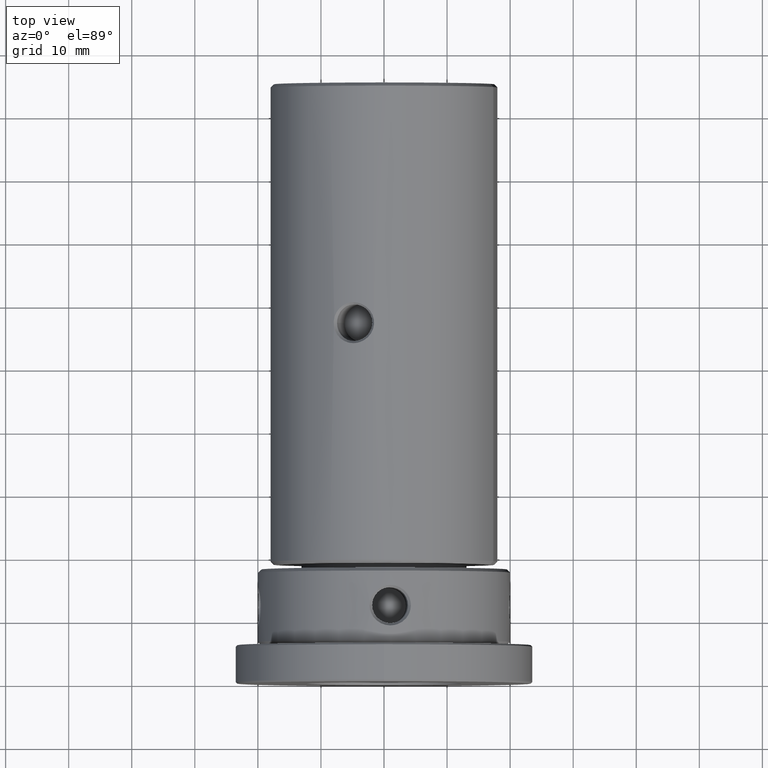
[diagram: clean part render]
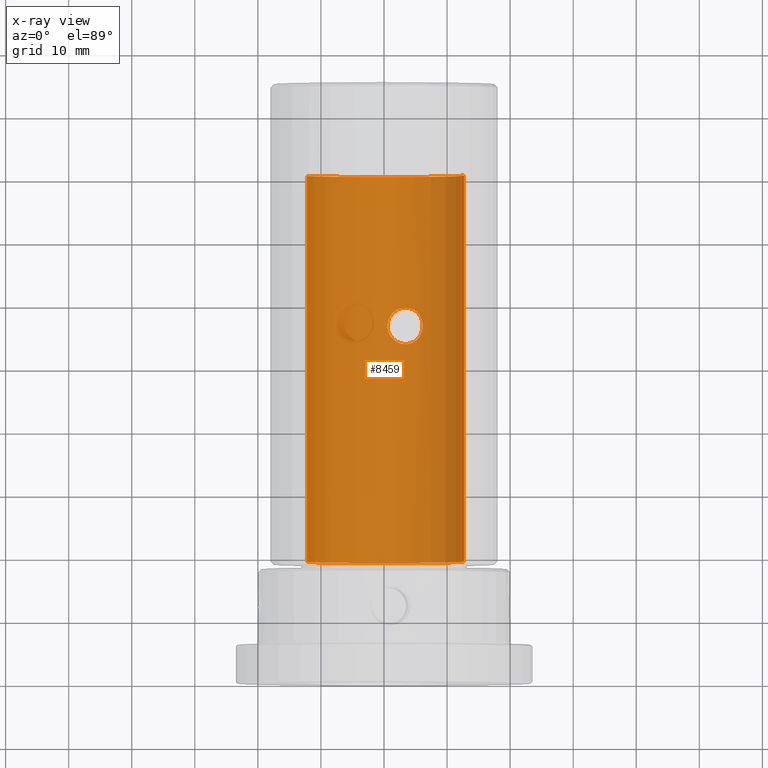
[diagram: x-ray — body ghosted, one internal face saturated and labeled with its STEP entity id]
A machine part, top view, then the same camera in x-ray: the body is ghosted and one INTERNAL B-rep face — a face not visible from any outside direction — is saturated and labeled: STEP entity #8459.
In plain terms, the highlighted cylindrical surface (partial cylindrical patch) has radius 12.7 mm, axis along (-0, -1, 0).
Its self-contained STEP definition (entity closure, byte-faithful):
#29 = FACE_OUTER_BOUND ( 'NONE', #2661, .T. ) ;
#133 = AXIS2_PLACEMENT_3D ( 'NONE', #2689, #9262, #1949 ) ;
#224 = CARTESIAN_POINT ( 'NONE',  ( 12.39894324269118719, -0.9401951649794191290, -2.749858906470167064 ) ) ;
#289 = CARTESIAN_POINT ( 'NONE',  ( 12.38596912812512230, 0.7527727064795094458, -2.806993549463236981 ) ) ;
#423 = VERTEX_POINT ( 'NONE', #4712 ) ;
#466 = CARTESIAN_POINT ( 'NONE',  ( 12.67896572346035100, 2.806687833708820801, -0.7543181018443877450 ) ) ;
#511 = VERTEX_POINT ( 'NONE', #3724 ) ;
#522 = CARTESIAN_POINT ( 'NONE',  ( 12.69998263146435313, 2.899923937786426542, -0.1910193265997046641 ) ) ;
#581 = CARTESIAN_POINT ( 'NONE',  ( 12.63587781602615578, 2.605842805848384014, -1.286558998793446928 ) ) ;
#629 = VERTEX_POINT ( 'NONE', #3595 ) ;
#757 = VECTOR ( 'NONE', #10723, 1000.000000000000000 ) ;
#780 = CARTESIAN_POINT ( 'NONE',  ( 12.51130447225693310, -1.915763031567567776, 2.185311623464120778 ) ) ;
#866 = EDGE_CURVE ( 'NONE', #423, #4053, #10903, .T. ) ;
#950 = LINE ( 'NONE', #3760, #8563 ) ;
#1155 = CARTESIAN_POINT ( 'NONE',  ( 12.44874701110165560, 1.454530129410072758, -2.515986017529720620 ) ) ;
#1209 = ORIENTED_EDGE ( 'NONE', *, *, #866, .T. ) ;
#1257 = AXIS2_PLACEMENT_3D ( 'NONE', #7591, #3575, #11258 ) ;
#1311 = AXIS2_PLACEMENT_3D ( 'NONE', #7287, #10001, #2563 ) ;
#1448 = CARTESIAN_POINT ( 'NONE',  ( 12.70001726289941857, 2.900075599599718945, 0.1887027945942288398 ) ) ;
#1880 = CARTESIAN_POINT ( 'NONE',  ( 12.69996578831445433, -2.899850176400718738, 0.3838317305583527905 ) ) ;
#1949 = DIRECTION ( 'NONE',  ( 0.000000000000000000, 0.000000000000000000, -1.000000000000000000 ) ) ;
#2124 = CARTESIAN_POINT ( 'NONE',  ( 12.36446521285898470, 0.000000000000000000, -2.900000000000000355 ) ) ;
#2183 = CARTESIAN_POINT ( 'NONE',  ( 12.57689324790971241, 2.304142311702099377, -1.771233362386771315 ) ) ;
#2291 = VERTEX_POINT ( 'NONE', #4578 ) ;
#2303 = CARTESIAN_POINT ( 'NONE',  ( 12.36446521285898292, 0.1896258015520335682, 2.899999999999999911 ) ) ;
#2316 = EDGE_LOOP ( 'NONE', ( #11124, #3567 ) ) ;
#2375 = EDGE_CURVE ( 'NONE', #7165, #2291, #11353, .T. ) ;
#2487 = CARTESIAN_POINT ( 'NONE',  ( 12.51127067264889448, 1.915598590444477445, 2.185562567395580302 ) ) ;
#2563 = DIRECTION ( 'NONE',  ( 0.000000000000000000, 0.000000000000000000, 1.000000000000000000 ) ) ;
#2625 = CARTESIAN_POINT ( 'NONE',  ( 12.48956709389252318, -1.770223327918396095, 2.304829802622239132 ) ) ;
#2639 = B_SPLINE_CURVE_WITH_KNOTS ( 'NONE', 3,
 ( #10425, #11633, #3050, #289, #7789, #4892, #1155, #11575, #11514, #6859, #2183, #10835, #581, #10718, #466, #8025, #522, #1448, #10050, #4262, #5131, #7094, #3338, #6041, #9988, #2487, #7969, #3224, #10780, #6974, #8937, #11753, #2303, #8086 ),
 .UNSPECIFIED., .F., .F.,
 ( 4, 2, 2, 2, 2, 2, 2, 2, 2, 2, 2, 2, 2, 2, 2, 2, 4 ),
 ( 0.000000000000000000, 0.0005685472515005052935, 0.001137094503001010587, 0.001705641754501515664, 0.002274189006002020740, 0.002842736257502525166, 0.003411283509003029592, 0.003979830760503533585, 0.004548378012004037144, 0.005116925263504541570, 0.005685472515005045128, 0.006254019766505548687, 0.006822567018006051379, 0.007391114269506555805, 0.007959661521007060231, 0.008528208772507565524, 0.009096756024008069083 ),
 .UNSPECIFIED. ) ;
#2661 = EDGE_LOOP ( 'NONE', ( #9076, #2734, #1209, #10870 ) ) ;
#2687 = CARTESIAN_POINT ( 'NONE',  ( 12.55532442681108662, -2.184812326543167149, -1.916259422998869866 ) ) ;
#2689 = CARTESIAN_POINT ( 'NONE',  ( 0.000000000000000000, 23.60000000000000142, 0.000000000000000000 ) ) ;
#2734 = ORIENTED_EDGE ( 'NONE', *, *, #4465, .F. ) ;
#2805 = CARTESIAN_POINT ( 'NONE',  ( 12.69571328377926456, -2.881394183919995022, -0.3788747206700372461 ) ) ;
#3050 = CARTESIAN_POINT ( 'NONE',  ( 12.36894956848314742, 0.3812465507140001542, -2.881064144013004924 ) ) ;
#3055 = EDGE_CURVE ( 'NONE', #629, #511, #950, .T. ) ;
#3224 = CARTESIAN_POINT ( 'NONE',  ( 12.44895635018773561, 1.456257222070480806, 2.514937285080292462 ) ) ;
#3338 = CARTESIAN_POINT ( 'NONE',  ( 12.61726306668823838, 2.515138328686194580, 1.455898166289717910 ) ) ;
#3567 = ORIENTED_EDGE ( 'NONE', *, *, #2375, .T. ) ;
#3575 = DIRECTION ( 'NONE',  ( -0.000000000000000000, -1.000000000000000000, -0.000000000000000000 ) ) ;
#3589 = CARTESIAN_POINT ( 'NONE',  ( 12.44881616416014580, -1.455138593714850659, 2.515651550362990374 ) ) ;
#3595 = CARTESIAN_POINT ( 'NONE',  ( 1.555301434917138433E-15, 23.60000000000000142, 12.69999999999999929 ) ) ;
#3651 = CARTESIAN_POINT ( 'NONE',  ( 12.36446521285898470, 3.551503995682597688E-16, 2.900000000000000355 ) ) ;
#3717 = CARTESIAN_POINT ( 'NONE',  ( 12.61725091254988840, -2.515078683108952440, 1.456006765504812339 ) ) ;
#3724 = CARTESIAN_POINT ( 'NONE',  ( 1.555301434917138433E-15, -37.59999999999999432, 12.69999999999999929 ) ) ;
#3760 = CARTESIAN_POINT ( 'NONE',  ( 1.555301434917138433E-15, 74.02102448427660875, 12.69999999999999929 ) ) ;
#3761 = CYLINDRICAL_SURFACE ( 'NONE', #1257, 12.69999999999999929 ) ;
#3776 = CARTESIAN_POINT ( 'NONE',  ( 12.36446521285898115, -0.3791503146851514239, 2.900000000000000799 ) ) ;
#3847 = CIRCLE ( 'NONE', #133, 12.69999999999999929 ) ;
#4053 = VERTEX_POINT ( 'NONE', #6757 ) ;
#4262 = CARTESIAN_POINT ( 'NONE',  ( 12.67896413693141611, 2.806678608284522536, 0.7540682748985287898 ) ) ;
#4465 = EDGE_CURVE ( 'NONE', #423, #629, #3847, .T. ) ;
#4520 = CARTESIAN_POINT ( 'NONE',  ( 12.66667842348518036, -2.751322455991592086, -0.9360151112250755245 ) ) ;
#4578 = CARTESIAN_POINT ( 'NONE',  ( 12.36446521285898470, 0.000000000000000000, -2.900000000000000355 ) ) ;
#4688 = DIRECTION ( 'NONE',  ( -0.000000000000000000, -1.000000000000000000, -0.000000000000000000 ) ) ;
#4712 = CARTESIAN_POINT ( 'NONE',  ( 0.000000000000000000, 23.60000000000000142, -12.69999999999999929 ) ) ;
#4768 = CARTESIAN_POINT ( 'NONE',  ( 12.38303458116406475, -0.7618976114263382726, 2.823544927438518037 ) ) ;
#4892 = CARTESIAN_POINT ( 'NONE',  ( 12.43016271405354267, 1.288207840848660579, -2.605113586911862011 ) ) ;
#5130 = EDGE_CURVE ( 'NONE', #4053, #511, #11881, .T. ) ;
#5131 = CARTESIAN_POINT ( 'NONE',  ( 12.66675394688176048, 2.751680340048226814, 0.9351728204179585724 ) ) ;
#5499 = CARTESIAN_POINT ( 'NONE',  ( 12.57711236432379032, -2.305288618983402316, 1.769525604960392684 ) ) ;
#6041 = CARTESIAN_POINT ( 'NONE',  ( 12.57713561512488631, 2.305414019141498905, 1.769357647107556941 ) ) ;
#6418 = CARTESIAN_POINT ( 'NONE',  ( 12.48982834922509966, -1.772135512941516611, -2.303444090011267154 ) ) ;
#6757 = CARTESIAN_POINT ( 'NONE',  ( 0.000000000000000000, -37.59999999999999432, -12.69999999999999929 ) ) ;
#6859 = CARTESIAN_POINT ( 'NONE',  ( 12.55523686329529909, 2.184319983390835773, -1.916839920655082352 ) ) ;
#6974 = CARTESIAN_POINT ( 'NONE',  ( 12.39862416374111476, 0.9361138176888464946, 2.751298559948054390 ) ) ;
#6978 = CARTESIAN_POINT ( 'NONE',  ( 0.000000000000000000, 74.02102448427660875, -12.69999999999999929 ) ) ;
#7094 = CARTESIAN_POINT ( 'NONE',  ( 12.63584394830842506, 2.605694039784032690, 1.287109734595450528 ) ) ;
#7165 = VERTEX_POINT ( 'NONE', #7994 ) ;
#7287 = CARTESIAN_POINT ( 'NONE',  ( 0.000000000000000000, -37.59999999999999432, 0.000000000000000000 ) ) ;
#7351 = CARTESIAN_POINT ( 'NONE',  ( 12.57726732007864534, -2.306160825649981039, -1.768535316871169050 ) ) ;
#7479 = CARTESIAN_POINT ( 'NONE',  ( 12.63557738172762690, -2.604408410260248719, 1.289752420085702012 ) ) ;
#7591 = CARTESIAN_POINT ( 'NONE',  ( 0.000000000000000000, 74.02102448427660875, 0.000000000000000000 ) ) ;
#7670 = CARTESIAN_POINT ( 'NONE',  ( 12.36894935289640074, -0.3818314368971992834, -2.881070035962062459 ) ) ;
#7786 = CARTESIAN_POINT ( 'NONE',  ( 12.43026078412844271, -1.289013799078436939, -2.604637091713425168 ) ) ;
#7789 = CARTESIAN_POINT ( 'NONE',  ( 12.39871053196223016, 0.9373138208562122875, -2.750916037099040867 ) ) ;
#7969 = CARTESIAN_POINT ( 'NONE',  ( 12.48952096140498291, 1.769831837584369127, 2.305057463793951822 ) ) ;
#7994 = CARTESIAN_POINT ( 'NONE',  ( 12.36446521285898470, 3.551503995682597688E-16, 2.900000000000000355 ) ) ;
#8025 = CARTESIAN_POINT ( 'NONE',  ( 12.69570981032783408, 2.881383759109684028, -0.3796314362617806970 ) ) ;
#8086 = CARTESIAN_POINT ( 'NONE',  ( 12.36446521285898470, 3.551503995682597688E-16, 2.900000000000000355 ) ) ;
#8277 = CARTESIAN_POINT ( 'NONE',  ( 12.63593895092698993, -2.606143922428789672, -1.286045644941414601 ) ) ;
#8399 = CARTESIAN_POINT ( 'NONE',  ( 12.55504488190301693, -2.183245378376836410, 1.918117437114977397 ) ) ;
#8459 = ADVANCED_FACE ( 'NONE', ( #29, #10281 ), #3761, .F. ) ;
#8523 = CARTESIAN_POINT ( 'NONE',  ( 12.42991004911208819, -1.285651376546450342, 2.606304667508089423 ) ) ;
#8563 = VECTOR ( 'NONE', #4688, 1000.000000000000000 ) ;
#8703 = CARTESIAN_POINT ( 'NONE',  ( 12.38613455489235982, -0.7557885706897342626, -2.806268596327904596 ) ) ;
#8937 = CARTESIAN_POINT ( 'NONE',  ( 12.38611150398740435, 0.7553105507777713168, 2.806369128247184097 ) ) ;
#9076 = ORIENTED_EDGE ( 'NONE', *, *, #3055, .F. ) ;
#9197 = CARTESIAN_POINT ( 'NONE',  ( 12.67914547630383737, -2.807494731691377865, -0.7509672620134137944 ) ) ;
#9262 = DIRECTION ( 'NONE',  ( 0.000000000000000000, -1.000000000000000000, 0.000000000000000000 ) ) ;
#9749 = CARTESIAN_POINT ( 'NONE',  ( 12.36446521285898648, -0.1922445587607679862, -2.900000000000000355 ) ) ;
#9988 = CARTESIAN_POINT ( 'NONE',  ( 12.55529549025336422, 2.184735444625975465, 1.916541868237835011 ) ) ;
#10001 = DIRECTION ( 'NONE',  ( 0.000000000000000000, -1.000000000000000000, 0.000000000000000000 ) ) ;
#10050 = CARTESIAN_POINT ( 'NONE',  ( 12.69563403217443565, 2.881047848182073601, 0.3816111501199079270 ) ) ;
#10121 = CARTESIAN_POINT ( 'NONE',  ( 12.68209871469470862, -2.824205622912704161, 0.7612361589632100634 ) ) ;
#10281 = FACE_BOUND ( 'NONE', #2316, .T. ) ;
#10425 = CARTESIAN_POINT ( 'NONE',  ( 12.36446521285898470, 0.000000000000000000, -2.900000000000000355 ) ) ;
#10718 = CARTESIAN_POINT ( 'NONE',  ( 12.66653713422618388, 2.750667468084927680, -0.9378055588379871077 ) ) ;
#10723 = DIRECTION ( 'NONE',  ( -0.000000000000000000, -1.000000000000000000, -0.000000000000000000 ) ) ;
#10780 = CARTESIAN_POINT ( 'NONE',  ( 12.42997894322381569, 1.286392030039990919, 2.605983190791878457 ) ) ;
#10835 = CARTESIAN_POINT ( 'NONE',  ( 12.61746043226510849, 2.516174831571643011, -1.454373966204447921 ) ) ;
#10870 = ORIENTED_EDGE ( 'NONE', *, *, #5130, .T. ) ;
#10903 = LINE ( 'NONE', #6978, #757 ) ;
#11084 = CARTESIAN_POINT ( 'NONE',  ( 12.51175687214665189, -1.918669712963867680, -2.182695950196013257 ) ) ;
#11124 = ORIENTED_EDGE ( 'NONE', *, *, #11724, .T. ) ;
#11258 = DIRECTION ( 'NONE',  ( 0.000000000000000000, 0.000000000000000000, -1.000000000000000000 ) ) ;
#11274 = CARTESIAN_POINT ( 'NONE',  ( 12.70001702994731474, -2.900074579429842370, -0.1902153897125677395 ) ) ;
#11353 = B_SPLINE_CURVE_WITH_KNOTS ( 'NONE', 3,
 ( #3651, #3776, #4768, #8523, #3589, #2625, #780, #8399, #5499, #3717, #7479, #10121, #1880, #11274, #2805, #9197, #4520, #8277, #11999, #7351, #2687, #11084, #6418, #11572, #7786, #224, #8703, #7670, #9749, #2124 ),
 .UNSPECIFIED., .F., .F.,
 ( 4, 2, 2, 2, 2, 2, 2, 2, 2, 2, 2, 2, 2, 2, 4 ),
 ( 0.009096756024008069083, 0.01023354683810329124, 0.01080194224515090319, 0.01137033765219851514, 0.01193873305924612709, 0.01250712846629373903, 0.01364391928038896119, 0.01421231468743657314, 0.01478071009448418335, 0.01534910550153179530, 0.01591750090857940725, 0.01648589631562701746, 0.01705429172267462767, 0.01762268712972223789, 0.01819108253676985157 ),
 .UNSPECIFIED. ) ;
#11514 = CARTESIAN_POINT ( 'NONE',  ( 12.51162346406612969, 1.917811983214616101, -2.183466571371301068 ) ) ;
#11572 = CARTESIAN_POINT ( 'NONE',  ( 12.44884291252355268, -1.455452487650934712, -2.515547059433997923 ) ) ;
#11575 = CARTESIAN_POINT ( 'NONE',  ( 12.48943791084642818, 1.769297905904319901, -2.305521298519997764 ) ) ;
#11633 = CARTESIAN_POINT ( 'NONE',  ( 12.36446521285898648, 0.1922959160896356989, -2.900000000000001243 ) ) ;
#11724 = EDGE_CURVE ( 'NONE', #2291, #7165, #2639, .T. ) ;
#11753 = CARTESIAN_POINT ( 'NONE',  ( 12.36896578237354838, 0.3821653626833068085, 2.880998324827734880 ) ) ;
#11881 = CIRCLE ( 'NONE', #1311, 12.69999999999999929 ) ;
#11999 = CARTESIAN_POINT ( 'NONE',  ( 12.61766548261743637, -2.517182302551760564, -1.452545412888501586 ) ) ;